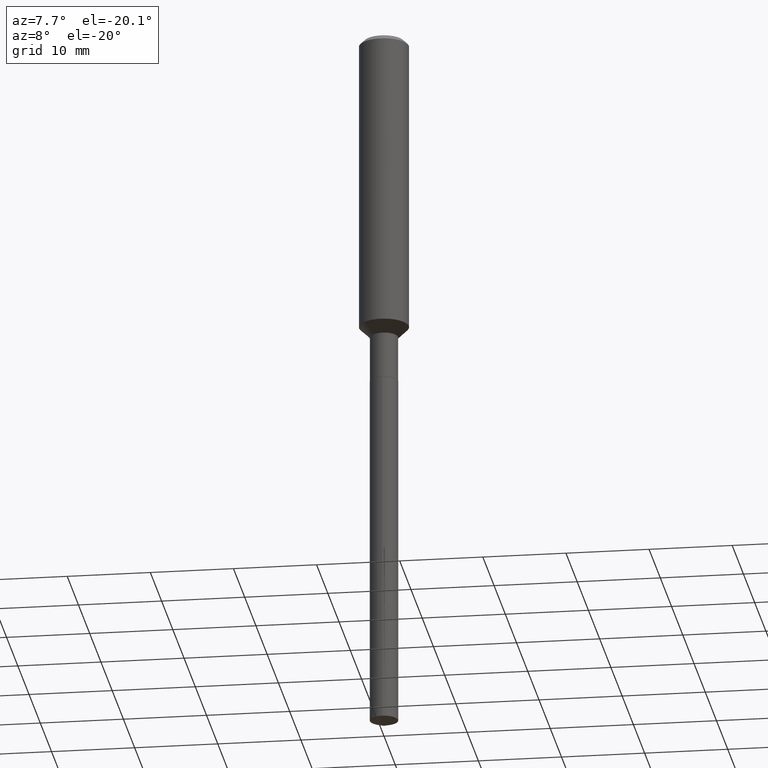
[diagram: clean part render]
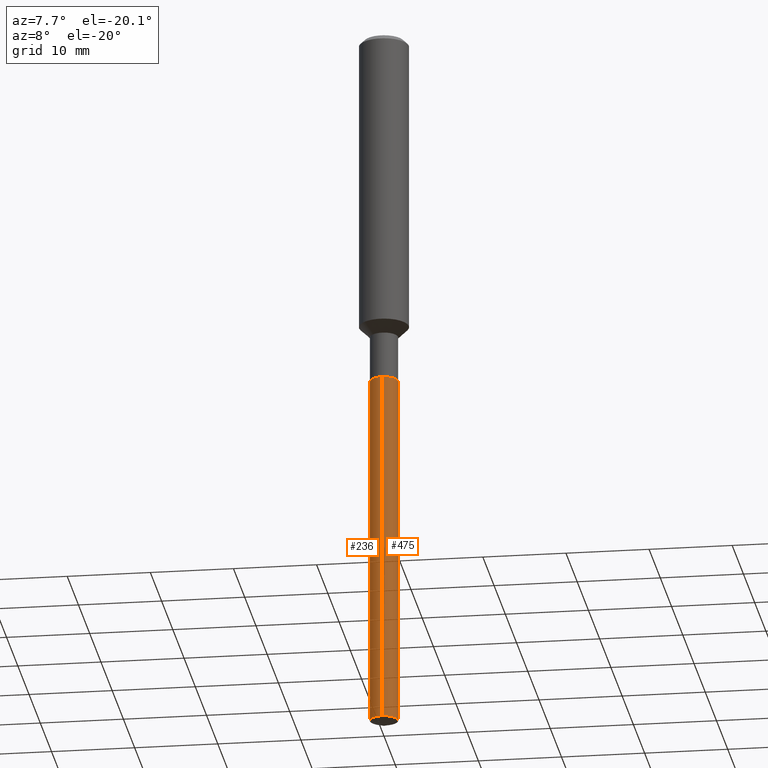
[diagram: same view with one multi-face feature highlighted, each face labeled with its STEP entity id]
A machine part, auxiliary view. The highlighted faces form ONE feature: a constant-radius fillet chain: 2 tangent blend faces with common blend radius 1.7005 mm. The faces share edges in the B-rep.
Their STEP definitions:
[1] entity #475 (Cylinder):
#17 = CARTESIAN_POINT ( 'NONE',  ( 4.148982376573702173E-29, -5.923647239481279412E-15, -1.696599999999999664 ) ) ;
#25 = DIRECTION ( 'NONE',  ( -2.440812294718397094E-29, 3.498149728295689980E-15, 1.000000000000000000 ) ) ;
#35 = DIRECTION ( 'NONE',  ( -2.440812294718397375E-29, 3.498149728295689980E-15, 1.000000000000000000 ) ) ;
#43 = LINE ( 'NONE', #151, #102 ) ;
#51 = EDGE_CURVE ( 'NONE', #160, #84, #343, .T. ) ;
#61 = CARTESIAN_POINT ( 'NONE',  ( 4.148982376573702173E-29, -5.923647239481279412E-15, -1.696599999999999664 ) ) ;
#62 = CARTESIAN_POINT ( 'NONE',  ( 4.757083615914697751E-16, 0.06694999999998814399, -3.390627693657579655 ) ) ;
#63 = ORIENTED_EDGE ( 'NONE', *, *, #51, .T. ) ;
#84 = VERTEX_POINT ( 'NONE', #62 ) ;
#99 = CARTESIAN_POINT ( 'NONE',  ( -4.675093512710124900E-16, -0.06695000000001181950, -3.390627693657579655 ) ) ;
#102 = VECTOR ( 'NONE', #35, 39.37007874015748143 ) ;
#121 = AXIS2_PLACEMENT_3D ( 'NONE', #284, #25, #164 ) ;
#129 = ORIENTED_EDGE ( 'NONE', *, *, #312, .T. ) ;
#130 = AXIS2_PLACEMENT_3D ( 'NONE', #61, #138, #430 ) ;
#138 = DIRECTION ( 'NONE',  ( -2.440812294718397094E-29, 3.498149728295689980E-15, 1.000000000000000000 ) ) ;
#151 = CARTESIAN_POINT ( 'NONE',  ( 4.757083615914285572E-16, 0.06694999999999408369, -1.696599999999999886 ) ) ;
#160 = VERTEX_POINT ( 'NONE', #99 ) ;
#163 = DIRECTION ( 'NONE',  ( -6.982962677686265133E-15, -1.000000000000000000, 4.080430162306592105E-15 ) ) ;
#164 = DIRECTION ( 'NONE',  ( -6.982962677686266711E-15, -1.000000000000000000, 0.000000000000000000 ) ) ;
#168 = CIRCLE ( 'NONE', #473, 0.06694999999999999563 ) ;
#176 = FACE_OUTER_BOUND ( 'NONE', #443, .T. ) ;
#177 = VECTOR ( 'NONE', #423, 39.37007874015748143 ) ;
#181 = CARTESIAN_POINT ( 'NONE',  ( -4.675093512710540038E-16, -0.06695000000000592144, -1.696599999999999220 ) ) ;
#189 = LINE ( 'NONE', #181, #177 ) ;
#200 = CARTESIAN_POINT ( 'NONE',  ( 4.757083615914702682E-16, 0.06694999999999406981, -1.696599999999999886 ) ) ;
#245 = VERTEX_POINT ( 'NONE', #371 ) ;
#279 = ORIENTED_EDGE ( 'NONE', *, *, #396, .F. ) ;
#284 = CARTESIAN_POINT ( 'NONE',  ( 8.283785998846573452E-29, -1.184960975577491673E-14, -3.390627693657579655 ) ) ;
#309 = DIRECTION ( 'NONE',  ( -2.440812294718397094E-29, 3.498149728295689980E-15, 1.000000000000000000 ) ) ;
#312 = EDGE_CURVE ( 'NONE', #84, #467, #43, .T. ) ;
#315 = CYLINDRICAL_SURFACE ( 'NONE', #130, 0.06694999999999999563 ) ;
#343 = CIRCLE ( 'NONE', #121, 0.06694999999999999563 ) ;
#356 = EDGE_CURVE ( 'NONE', #160, #245, #189, .T. ) ;
#371 = CARTESIAN_POINT ( 'NONE',  ( -4.675093512710540038E-16, -0.06695000000000592144, -1.696599999999999220 ) ) ;
#396 = EDGE_CURVE ( 'NONE', #245, #467, #168, .T. ) ;
#421 = ORIENTED_EDGE ( 'NONE', *, *, #356, .F. ) ;
#423 = DIRECTION ( 'NONE',  ( -2.440812294718397375E-29, 3.498149728295689980E-15, 1.000000000000000000 ) ) ;
#430 = DIRECTION ( 'NONE',  ( -6.982962677686266711E-15, -1.000000000000000000, 4.080430162306592105E-15 ) ) ;
#443 = EDGE_LOOP ( 'NONE', ( #63, #129, #279, #421 ) ) ;
#467 = VERTEX_POINT ( 'NONE', #200 ) ;
#473 = AXIS2_PLACEMENT_3D ( 'NONE', #17, #309, #163 ) ;
#475 = ADVANCED_FACE ( 'NONE', ( #176 ), #315, .T. ) ;
[2] entity #236 (Cylinder):
#2 = AXIS2_PLACEMENT_3D ( 'NONE', #369, #33, #214 ) ;
#33 = DIRECTION ( 'NONE',  ( -2.440812294718397094E-29, 3.498149728295689980E-15, 1.000000000000000000 ) ) ;
#35 = DIRECTION ( 'NONE',  ( -2.440812294718397375E-29, 3.498149728295689980E-15, 1.000000000000000000 ) ) ;
#43 = LINE ( 'NONE', #151, #102 ) ;
#60 = ORIENTED_EDGE ( 'NONE', *, *, #312, .F. ) ;
#62 = CARTESIAN_POINT ( 'NONE',  ( 4.757083615914697751E-16, 0.06694999999998814399, -3.390627693657579655 ) ) ;
#84 = VERTEX_POINT ( 'NONE', #62 ) ;
#99 = CARTESIAN_POINT ( 'NONE',  ( -4.675093512710124900E-16, -0.06695000000001181950, -3.390627693657579655 ) ) ;
#102 = VECTOR ( 'NONE', #35, 39.37007874015748143 ) ;
#109 = DIRECTION ( 'NONE',  ( -6.982962677686266711E-15, -1.000000000000000000, 0.000000000000000000 ) ) ;
#151 = CARTESIAN_POINT ( 'NONE',  ( 4.757083615914285572E-16, 0.06694999999999408369, -1.696599999999999886 ) ) ;
#160 = VERTEX_POINT ( 'NONE', #99 ) ;
#177 = VECTOR ( 'NONE', #423, 39.37007874015748143 ) ;
#181 = CARTESIAN_POINT ( 'NONE',  ( -4.675093512710540038E-16, -0.06695000000000592144, -1.696599999999999220 ) ) ;
#189 = LINE ( 'NONE', #181, #177 ) ;
#190 = ORIENTED_EDGE ( 'NONE', *, *, #346, .T. ) ;
#200 = CARTESIAN_POINT ( 'NONE',  ( 4.757083615914702682E-16, 0.06694999999999406981, -1.696599999999999886 ) ) ;
#202 = AXIS2_PLACEMENT_3D ( 'NONE', #347, #298, #109 ) ;
#214 = DIRECTION ( 'NONE',  ( -6.982962677686266711E-15, -1.000000000000000000, 4.080430162306592105E-15 ) ) ;
#236 = ADVANCED_FACE ( 'NONE', ( #450 ), #331, .T. ) ;
#244 = CIRCLE ( 'NONE', #202, 0.06694999999999999563 ) ;
#245 = VERTEX_POINT ( 'NONE', #371 ) ;
#276 = CARTESIAN_POINT ( 'NONE',  ( 4.148982376573702173E-29, -5.923647239481279412E-15, -1.696599999999999664 ) ) ;
#282 = ORIENTED_EDGE ( 'NONE', *, *, #454, .F. ) ;
#298 = DIRECTION ( 'NONE',  ( -2.440812294718397094E-29, 3.498149728295689980E-15, 1.000000000000000000 ) ) ;
#308 = ORIENTED_EDGE ( 'NONE', *, *, #356, .T. ) ;
#312 = EDGE_CURVE ( 'NONE', #84, #467, #43, .T. ) ;
#331 = CYLINDRICAL_SURFACE ( 'NONE', #2, 0.06694999999999999563 ) ;
#346 = EDGE_CURVE ( 'NONE', #84, #160, #244, .T. ) ;
#347 = CARTESIAN_POINT ( 'NONE',  ( 8.283785998846573452E-29, -1.184960975577491673E-14, -3.390627693657579655 ) ) ;
#356 = EDGE_CURVE ( 'NONE', #160, #245, #189, .T. ) ;
#369 = CARTESIAN_POINT ( 'NONE',  ( 4.148982376573702173E-29, -5.923647239481279412E-15, -1.696599999999999664 ) ) ;
#371 = CARTESIAN_POINT ( 'NONE',  ( -4.675093512710540038E-16, -0.06695000000000592144, -1.696599999999999220 ) ) ;
#380 = EDGE_LOOP ( 'NONE', ( #60, #190, #308, #282 ) ) ;
#401 = DIRECTION ( 'NONE',  ( -6.982962677686265133E-15, -1.000000000000000000, 4.080430162306592105E-15 ) ) ;
#423 = DIRECTION ( 'NONE',  ( -2.440812294718397375E-29, 3.498149728295689980E-15, 1.000000000000000000 ) ) ;
#434 = AXIS2_PLACEMENT_3D ( 'NONE', #276, #437, #401 ) ;
#437 = DIRECTION ( 'NONE',  ( -2.440812294718397094E-29, 3.498149728295689980E-15, 1.000000000000000000 ) ) ;
#450 = FACE_OUTER_BOUND ( 'NONE', #380, .T. ) ;
#454 = EDGE_CURVE ( 'NONE', #467, #245, #488, .T. ) ;
#467 = VERTEX_POINT ( 'NONE', #200 ) ;
#488 = CIRCLE ( 'NONE', #434, 0.06694999999999999563 ) ;